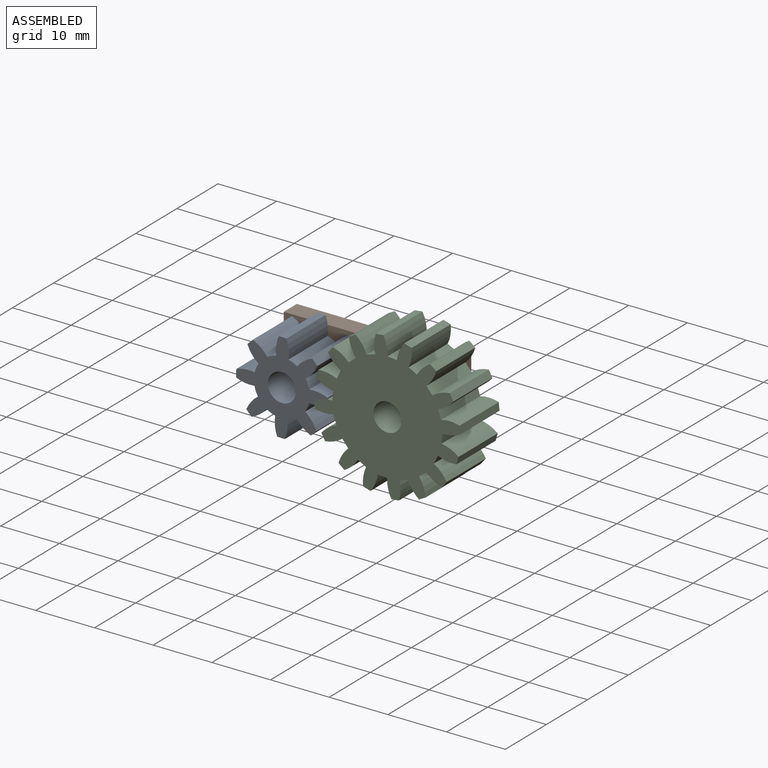
[diagram: assembled view]
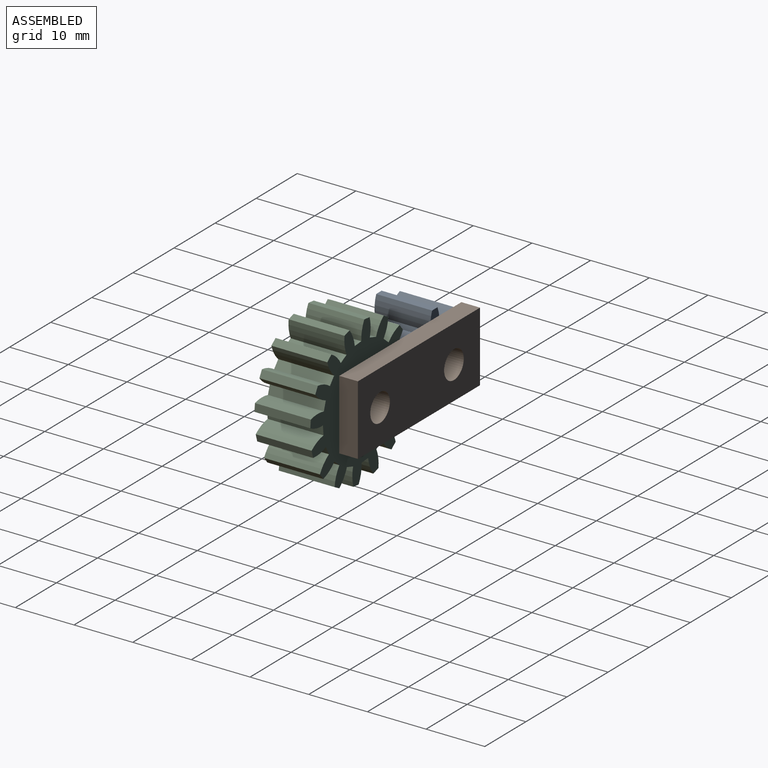
[diagram: assembled view, second angle]
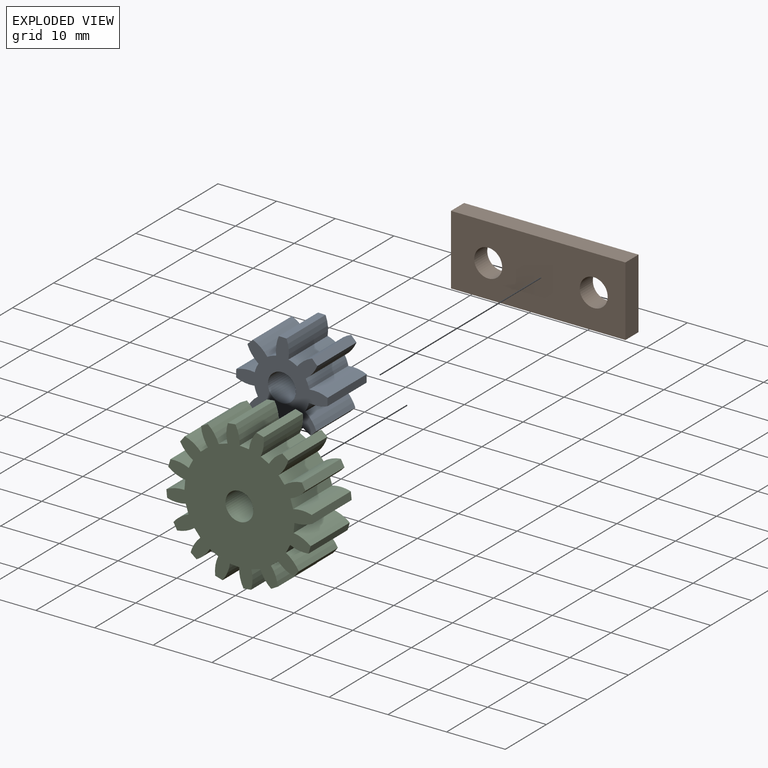
[diagram: exploded view]
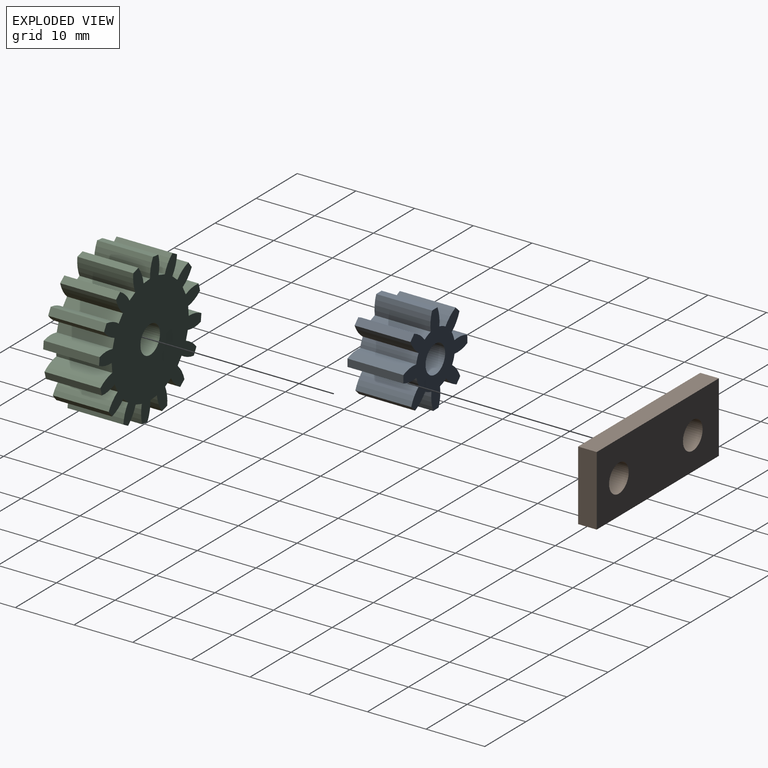
[diagram: exploded view, second angle]
ASSEMBLY  parts=3 mates=2
PART A: 35 faces, bbox 15.5x9.5x15.5 mm
  f0: cylinder r=5.83mm len=9.53mm, axis (0,1,0), area 30.5mm2, adj f1,f31,f33,f34
  f1: cylinder r=4.76mm len=9.53mm, axis (0,1,0), area 15.6mm2, adj f0,f2,f33,f34
  f2: cylinder r=5.85mm len=9.53mm, axis (0,1,0), area 30.5mm2, adj f1,f3,f33,f34
  f3: plane 9.53x1.08mm, normal (-0.56,0,0.83), area 12.4mm2, adj f2,f4,f33,f34
  f4: cylinder r=5.83mm len=9.53mm, axis (0,1,0), area 30.5mm2, adj f3,f5,f33,f34
  f5: cylinder r=4.76mm len=9.53mm, axis (0,1,0), area 15.6mm2, adj f4,f6,f33,f34
  f6: cylinder r=5.85mm len=9.53mm, axis (0,1,0), area 30.5mm2, adj f5,f7,f33,f34
  f7: plane 9.53x1.27mm, normal (-0.98,0,0.2), area 12.4mm2, adj f6,f8,f33,f34
  f8: cylinder r=5.83mm len=9.53mm, axis (0,1,0), area 30.5mm2, adj f7,f9,f33,f34
  f9: cylinder r=4.76mm len=9.53mm, axis (0,1,0), area 15.6mm2, adj f8,f10,f33,f34
  f10: cylinder r=5.85mm len=9.53mm, axis (0,1,0), area 30.5mm2, adj f9,f11,f33,f34
  f11: plane 9.53x1.08mm, normal (-0.83,0,-0.56), area 12.4mm2, adj f10,f12,f33,f34
  f12: cylinder r=5.83mm len=9.53mm, axis (0,1,0), area 30.5mm2, adj f11,f13,f33,f34
  f13: cylinder r=4.76mm len=9.53mm, axis (0,1,0), area 15.6mm2, adj f12,f14,f33,f34
  f14: cylinder r=5.85mm len=9.53mm, axis (0,1,0), area 30.5mm2, adj f13,f15,f33,f34
  f15: plane 9.53x1.27mm, normal (-0.2,0,-0.98), area 12.4mm2, adj f14,f16,f33,f34
  f16: cylinder r=5.83mm len=9.53mm, axis (0,1,0), area 30.5mm2, adj f15,f17,f33,f34
  f17: cylinder r=4.76mm len=9.53mm, axis (0,1,0), area 15.6mm2, adj f16,f18,f33,f34
  f18: cylinder r=5.85mm len=9.53mm, axis (0,1,0), area 30.5mm2, adj f17,f19,f33,f34
  f19: plane 9.53x1.08mm, normal (0.56,0,-0.83), area 12.4mm2, adj f18,f20,f33,f34
  f20: cylinder r=5.83mm len=9.53mm, axis (0,1,0), area 30.5mm2, adj f19,f21,f33,f34
  f21: cylinder r=4.76mm len=9.53mm, axis (0,1,0), area 15.6mm2, adj f20,f22,f33,f34
  f22: cylinder r=5.85mm len=9.53mm, axis (0,1,0), area 30.5mm2, adj f21,f23,f33,f34
  f23: plane 9.53x1.27mm, normal (0.98,0,-0.2), area 12.4mm2, adj f22,f24,f33,f34
  f24: cylinder r=5.83mm len=9.53mm, axis (0,1,0), area 30.5mm2, adj f23,f25,f33,f34
  f25: cylinder r=4.76mm len=9.53mm, axis (0,1,0), area 15.6mm2, adj f24,f26,f33,f34
  f26: cylinder r=5.85mm len=9.53mm, axis (0,1,0), area 30.5mm2, adj f25,f27,f33,f34
  f27: plane 9.53x1.08mm, normal (0.83,0,0.56), area 12.4mm2, adj f26,f28,f33,f34
  f28: cylinder r=5.83mm len=9.53mm, axis (0,1,0), area 30.5mm2, adj f27,f29,f33,f34
  f29: cylinder r=4.76mm len=9.53mm, axis (0,1,0), area 15.6mm2, adj f28,f30,f33,f34
  f30: cylinder r=5.85mm len=9.53mm, axis (0,1,0), area 30.5mm2, adj f29,f31,f33,f34
  f31: plane 9.53x1.27mm, normal (0.2,0,0.98), area 12.4mm2, adj f0,f30,f33,f34
  f32: cylinder r=2.38mm len=9.53mm, axis (0,1,0), area 142.5mm2, adj f33,f34
  f33: plane 15.53x15.53mm, normal (0,-1,0), area 102.1mm2, adj f0,f1,f2,f3,f4,f5,f6,f7
  f34: plane 15.53x15.53mm, normal (0,1,0), area 102.1mm2, adj f0,f1,f2,f3,f4,f5,f6,f7
PART B: 8 faces, bbox 29.7x3.2x11.9 mm
  f0: plane 11.95x3.18mm, normal (-1,0,0), area 37.9mm2, adj f1,f4,f6,f7
  f1: plane 29.73x3.18mm, normal (0,0,-1), area 94.4mm2, adj f0,f2,f6,f7
  f2: plane 11.95x3.18mm, normal (1,0,0), area 37.9mm2, adj f1,f4,f6,f7
  f3: cylinder r=2.38mm len=4.76mm, axis (0,1,0), area 47.5mm2, adj f6,f7
  f4: plane 29.73x3.18mm, normal (0,0,1), area 94.4mm2, adj f0,f2,f6,f7
  f5: cylinder r=2.38mm len=4.76mm, axis (0,1,0), area 47.5mm2, adj f6,f7
  f6: plane 29.73x11.95mm, normal (0,-1,0), area 319.5mm2, adj f0,f1,f2,f3,f4,f5
  f7: plane 29.73x11.95mm, normal (0,1,0), area 319.5mm2, adj f0,f1,f2,f3,f4,f5
PART C: 67 faces, bbox 24.7x9.5x24.7 mm
  f0: plane 9.53x1.12mm, normal (-0.71,0,-0.71), area 15.1mm2, adj f1,f63,f65,f66
  f1: cylinder r=5.83mm len=9.53mm, axis (0,1,0), area 30.5mm2, adj f0,f2,f65,f66
  f2: plane 9.53x1.08mm, normal (-0.56,0,-0.83), area 12.4mm2, adj f1,f3,f65,f66
  f3: cylinder r=5.83mm len=9.53mm, axis (0,1,0), area 30.5mm2, adj f2,f4,f65,f66
  f4: plane 9.53x1.47mm, normal (-0.38,0,-0.92), area 15.1mm2, adj f3,f5,f65,f66
  f5: cylinder r=5.83mm len=9.53mm, axis (0,1,0), area 30.5mm2, adj f4,f6,f65,f66
  f6: plane 9.53x1.27mm, normal (-0.2,0,-0.98), area 12.4mm2, adj f5,f7,f65,f66
  f7: cylinder r=5.83mm len=9.53mm, axis (0,1,0), area 30.5mm2, adj f6,f8,f65,f66
  f8: plane 9.53x1.59mm, normal (0,0,-1), area 15.1mm2, adj f7,f9,f65,f66
  f9: cylinder r=5.83mm len=9.53mm, axis (0,1,0), area 30.5mm2, adj f8,f10,f65,f66
  f10: plane 9.53x1.27mm, normal (0.2,0,-0.98), area 12.4mm2, adj f9,f11,f65,f66
  f11: cylinder r=5.83mm len=9.53mm, axis (0,1,0), area 30.5mm2, adj f10,f12,f65,f66
  f12: plane 9.53x1.47mm, normal (0.38,0,-0.92), area 15.1mm2, adj f11,f13,f65,f66
  f13: cylinder r=5.83mm len=9.53mm, axis (0,1,0), area 30.5mm2, adj f12,f14,f65,f66
  f14: plane 9.53x1.08mm, normal (0.56,0,-0.83), area 12.4mm2, adj f13,f15,f65,f66
  f15: cylinder r=5.83mm len=9.53mm, axis (0,1,0), area 30.5mm2, adj f14,f16,f65,f66
  f16: plane 9.53x1.12mm, normal (0.71,0,-0.71), area 15.1mm2, adj f15,f17,f65,f66
  f17: cylinder r=5.83mm len=9.53mm, axis (0,1,0), area 30.5mm2, adj f16,f18,f65,f66
  f18: plane 9.53x1.08mm, normal (0.83,0,-0.56), area 12.4mm2, adj f17,f19,f65,f66
  f19: cylinder r=5.83mm len=9.53mm, axis (0,1,0), area 30.5mm2, adj f18,f20,f65,f66
  f20: plane 9.53x1.47mm, normal (0.92,0,-0.38), area 15.1mm2, adj f19,f21,f65,f66
  f21: cylinder r=5.83mm len=9.53mm, axis (0,1,0), area 30.5mm2, adj f20,f22,f65,f66
  f22: plane 9.53x1.27mm, normal (0.98,0,-0.2), area 12.4mm2, adj f21,f23,f65,f66
  f23: cylinder r=5.83mm len=9.53mm, axis (0,1,0), area 30.5mm2, adj f22,f24,f65,f66
  f24: plane 9.53x1.59mm, normal (1,0,0), area 15.1mm2, adj f23,f25,f65,f66
  f25: cylinder r=5.83mm len=9.53mm, axis (0,1,0), area 30.5mm2, adj f24,f26,f65,f66
  f26: plane 9.53x1.27mm, normal (0.98,0,0.2), area 12.4mm2, adj f25,f27,f65,f66
  f27: cylinder r=5.83mm len=9.53mm, axis (0,1,0), area 30.5mm2, adj f26,f28,f65,f66
  f28: plane 9.53x1.47mm, normal (0.92,0,0.38), area 15.1mm2, adj f27,f29,f65,f66
  f29: cylinder r=5.83mm len=9.53mm, axis (0,1,0), area 30.5mm2, adj f28,f30,f65,f66
  f30: plane 9.53x1.08mm, normal (0.83,0,0.56), area 12.4mm2, adj f29,f31,f65,f66
  f31: cylinder r=5.83mm len=9.53mm, axis (0,1,0), area 30.5mm2, adj f30,f32,f65,f66
  f32: plane 9.53x1.12mm, normal (0.71,0,0.71), area 15.1mm2, adj f31,f33,f65,f66
  f33: cylinder r=5.83mm len=9.53mm, axis (0,1,0), area 30.5mm2, adj f32,f34,f65,f66
  f34: plane 9.53x1.08mm, normal (0.56,0,0.83), area 12.4mm2, adj f33,f35,f65,f66
  f35: cylinder r=5.83mm len=9.53mm, axis (0,1,0), area 30.5mm2, adj f34,f36,f65,f66
  f36: plane 9.53x1.47mm, normal (0.38,0,0.92), area 15.1mm2, adj f35,f37,f65,f66
  f37: cylinder r=5.83mm len=9.53mm, axis (0,1,0), area 30.5mm2, adj f36,f38,f65,f66
  f38: plane 9.53x1.27mm, normal (0.2,0,0.98), area 12.4mm2, adj f37,f39,f65,f66
  f39: cylinder r=5.83mm len=9.53mm, axis (0,1,0), area 30.5mm2, adj f38,f40,f65,f66
  f40: plane 9.53x1.59mm, normal (0,0,1), area 15.1mm2, adj f39,f41,f65,f66
  f41: cylinder r=5.83mm len=9.53mm, axis (0,1,0), area 30.5mm2, adj f40,f42,f65,f66
  f42: plane 9.53x1.27mm, normal (-0.2,0,0.98), area 12.4mm2, adj f41,f43,f65,f66
  f43: cylinder r=5.83mm len=9.53mm, axis (0,1,0), area 30.5mm2, adj f42,f44,f65,f66
  f44: plane 9.53x1.47mm, normal (-0.38,0,0.92), area 15.1mm2, adj f43,f45,f65,f66
  f45: cylinder r=5.83mm len=9.53mm, axis (0,1,0), area 30.5mm2, adj f44,f46,f65,f66
  f46: plane 9.53x1.08mm, normal (-0.56,0,0.83), area 12.4mm2, adj f45,f47,f65,f66
  f47: cylinder r=5.83mm len=9.53mm, axis (0,1,0), area 30.5mm2, adj f46,f48,f65,f66
  f48: plane 9.53x1.12mm, normal (-0.71,0,0.71), area 15.1mm2, adj f47,f49,f65,f66
  f49: cylinder r=5.83mm len=9.53mm, axis (0,1,0), area 30.5mm2, adj f48,f50,f65,f66
  f50: plane 9.53x1.08mm, normal (-0.83,0,0.56), area 12.4mm2, adj f49,f51,f65,f66
  f51: cylinder r=5.83mm len=9.53mm, axis (0,1,0), area 30.5mm2, adj f50,f52,f65,f66
  f52: plane 9.53x1.47mm, normal (-0.92,0,0.38), area 15.1mm2, adj f51,f53,f65,f66
  f53: cylinder r=5.83mm len=9.53mm, axis (0,1,0), area 30.5mm2, adj f52,f54,f65,f66
  f54: plane 9.53x1.27mm, normal (-0.98,0,0.2), area 12.4mm2, adj f53,f55,f65,f66
  f55: cylinder r=5.83mm len=9.53mm, axis (0,1,0), area 30.5mm2, adj f54,f56,f65,f66
  f56: plane 9.53x1.59mm, normal (-1,0,0), area 15.1mm2, adj f55,f57,f65,f66
  f57: cylinder r=5.83mm len=9.53mm, axis (0,1,0), area 30.5mm2, adj f56,f58,f65,f66
  f58: plane 9.53x1.27mm, normal (-0.98,0,-0.2), area 12.4mm2, adj f57,f59,f65,f66
  f59: cylinder r=5.83mm len=9.53mm, axis (0,1,0), area 30.5mm2, adj f58,f60,f65,f66
  f60: plane 9.53x1.47mm, normal (-0.92,0,-0.38), area 15.1mm2, adj f59,f61,f65,f66
  f61: cylinder r=5.83mm len=9.53mm, axis (0,1,0), area 30.5mm2, adj f60,f62,f65,f66
  f62: plane 9.53x1.08mm, normal (-0.83,0,-0.56), area 12.4mm2, adj f61,f63,f65,f66
  f63: cylinder r=5.83mm len=9.53mm, axis (0,1,0), area 30.5mm2, adj f0,f62,f65,f66
  f64: cylinder r=2.38mm len=9.53mm, axis (0,1,0), area 142.5mm2, adj f65,f66
  f65: plane 24.69x24.69mm, normal (0,-1,0), area 356.3mm2, adj f0,f1,f2,f3,f4,f5,f6,f7
  f66: plane 24.69x24.69mm, normal (0,1,0), area 356.3mm2, adj f0,f1,f2,f3,f4,f5,f6,f7
PLACE A rot(axis=(0,1,0),124.8deg) t=(8.56,-3.17,45.86)mm
PLACE B at identity fixed
PLACE C rot(axis=(0,1,0),27.6deg) t=(29.78,-3.18,42.76)mm
MATE revolute C.f64 <-> B.f3  axis (0,1,0) through (29.78,-3.18,42.76)mm
MATE revolute A.f1 <-> B.f5  axis (0,1,0) through (11.8,-3.18,42.5)mm
